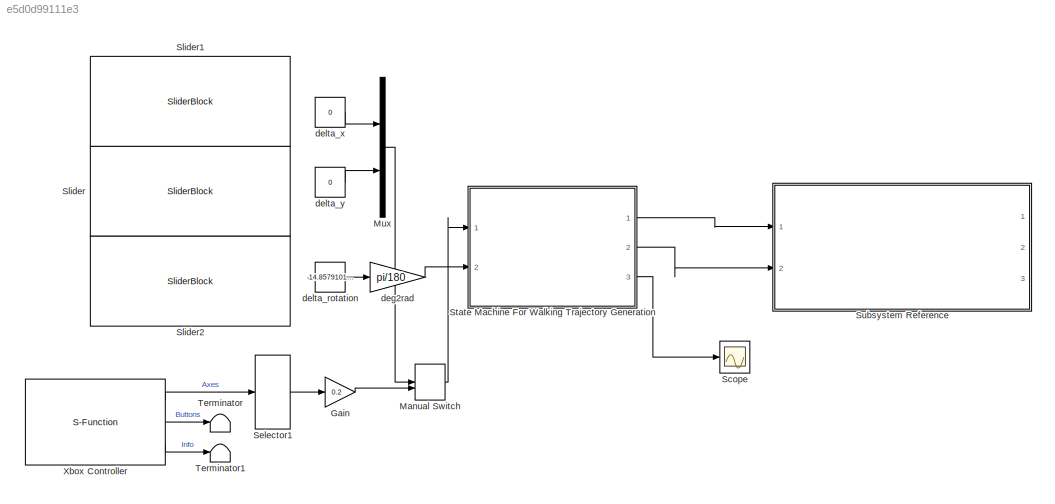
MODEL slx_e5d0d99111e3
KIND model
CONFIG AbsTol = auto
CONFIG EnableMultiTasking = off
CONFIG FixedStep = auto
CONFIG MaxStep = auto
CONFIG MinStep = auto
CONFIG RelTol = 1e-3
CONFIG SampleTimeConstraint = Unconstrained
CONFIG Solver = VariableStepAuto
CONFIG SolverName = VariableStepAuto
CONFIG StartTime = 0.0
CONFIG StopTime = inf
BLOCK [Gain] Gain
  Gain = 0.2
BLOCK [ManualSwitch] Manual Switch
BLOCK [Mux] Mux
  DisplayOption = bar
  Inputs = 2
  Ports = [2, 1]
BLOCK [Scope] Scope
  Floating = off
  NumInputPorts = 1
  Ports = [1]
  ScopeSpecificationString = Simulink.scopes.TimeScopeBlockCfg('CurrentConfiguration', extmgr.ConfigurationSet(extmgr.Configuration('Core','General UI',true),extmgr.Configuration('Core','Source UI',true),extmgr.Configuration('Sources','WiredSimulink',true,'DataLoggingVariableName','ScopeData2'),extmgr.Configuration('Visuals','Time Domain',true,'SerializedDisplays',{struct('MinYLimReal','-0.16508','MaxYLimReal','0.7739','YLabe...<+1625ch>
BLOCK [Selector] Selector1
  IndexOptions = Index vector (dialog)
  Indices = [1 2]
  InputPortWidth = 6
  OutputSizes = 1
  Ports = [1, 1]
BLOCK [SliderBlock] Slider
  ScaleMax = 0.2
  ScaleMin = -0.2
BLOCK [SliderBlock] Slider1
  ScaleMax = 0.2
  ScaleMin = -0.2
BLOCK [SliderBlock] Slider2
  ScaleMax = 45
  ScaleMin = -45
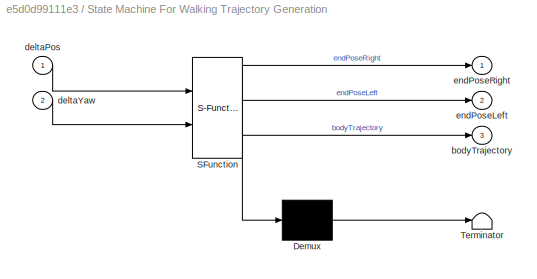
BLOCK [SubSystem] State Machine For Walking Trajectory Generation
  ErrorFcn = Stateflow.Translate.translate
  PermitHierarchicalResolution = ExplicitOnly
  Ports = [2, 3]
  RequestExecContextInheritance = off
  SFBlockType = Chart
  SystemSampleTime = Ts
  TreatAsAtomicUnit = on
BLOCK [Demux] State Machine For Walking Trajectory Generation/ Demux 
  Outputs = 1
  Ports = [1, 1]
BLOCK [S-Function] State Machine For Walking Trajectory Generation/ SFunction 
  EnableBusSupport = on
  FunctionName = sf_sfun
  PortCounts = [2 4]
  Ports = [2, 4]
  SFcnIsStateOwnerBlock = off
  SFunctionDeploymentMode = off
  Tag = Stateflow S-Function 4
BLOCK [Terminator] State Machine For Walking Trajectory Generation/ Terminator 
BLOCK [Outport] State Machine For Walking Trajectory Generation/bodyTrajectory
  Port = 3
BLOCK [Inport] State Machine For Walking Trajectory Generation/deltaPos
BLOCK [Inport] State Machine For Walking Trajectory Generation/deltaYaw
  Port = 2
BLOCK [Outport] State Machine For Walking Trajectory Generation/endPoseLeft
  Port = 2
BLOCK [Outport] State Machine For Walking Trajectory Generation/endPoseRight
BLOCK [SubSystem] Subsystem Reference
  Ports = [2, 3]
  ReferencedSubsystem = WalkingRobotSubsystem
  RequestExecContextInheritance = off
BLOCK [Terminator] Terminator
BLOCK [Terminator] Terminator1
BLOCK [S-Function] Xbox Controller
  EnableBusSupport = off
  FunctionName = XInput_Controller_SFun
  Parameters = 1
  Ports = [0, 3]
  SFcnIsStateOwnerBlock = off
  SFunctionDeploymentMode = off
BLOCK [Gain] deg2rad
  Gain = pi/180
BLOCK [Constant] delta_rotation
  StartFcn = set_param(gcbh,'Value','0')
  Value = -14.85791015625
BLOCK [Constant] delta_x
  StartFcn = set_param(gcbh,'Value','0')
  Value = 0
BLOCK [Constant] delta_y
  StartFcn = set_param(gcbh,'Value','0')
  Value = 0
LINE Gain:1 -> Manual Switch:2
LINE Manual Switch:1 -> State Machine For Walking Trajectory Generation:1
LINE Mux:1 -> Manual Switch:1
LINE Selector1:1 -> Gain:1
LINE State Machine For Walking Trajectory Generation:1 -> Subsystem Reference:1
LINE State Machine For Walking Trajectory Generation:2 -> Subsystem Reference:2
LINE State Machine For Walking Trajectory Generation:3 -> Scope:1
LINE Xbox Controller:1 -> Selector1:1
LINE Xbox Controller:2 -> Terminator:1
LINE Xbox Controller:3 -> Terminator1:1
LINE deg2rad:1 -> State Machine For Walking Trajectory Generation:2
LINE delta_rotation:1 -> deg2rad:1
LINE delta_x:1 -> Mux:1
LINE delta_y:1 -> Mux:2
CHART State Machine For
Walking Trajectory Generation states=12 transitions=6
  STATE_LABEL 'StandBy\nentry:\nidxmax = 0.5/TS;\nduring:\nidx = idx + 1;\n'
  STATE_LABEL '<!DOCTYPE HTML PUBLIC "-//W3C//DTD HTML 4.0//EN" "http://www.w3.org/TR/REC-html40/strict.dtd">\n<html><head><meta name="qrichtext" content="1" /><style type="text/css">\np, li { white-space: pre-wrap; }\n</style></head><body align="left" style=" font-family:\'Helvetica\'; font-size:12px; font-weight:400; font-style:normal;">\n<p align="left" style=" margin-top:0px; margin-bottom:0px; margin-left:0px; ma...<+2958ch>'
  STATE_LABEL '<!DOCTYPE HTML PUBLIC "-//W3C//DTD HTML 4.0//EN" "http://www.w3.org/TR/REC-html40/strict.dtd">\n<html><head><meta name="qrichtext" content="1" /><style type="text/css">\np, li { white-space: pre-wrap; }\n</style></head><body align="left" style=" font-family:\'Helvetica\'; font-size:12px; font-weight:400; font-style:normal;">\n<p align="left" style=" margin-top:0px; margin-bottom:0px; margin-left:0px; ma...<+3031ch>'
  STATE_LABEL 'getWalkingTrajectory(rightStance)'
  STATE_LABEL 'SCRIPT:\nfunction getWalkingTrajectory(rightStance)\n% Tb, Tb1: The "capture-point body pose" is an capture-point body pose I keep track of to determine\n% capture point. This is not really where the actual body of the robot will\n% be, rather this is some pose that the robot will be around at during the middle\n% of its stance trajectory. capture-point body pose is essentially something that helps\n% m...<+2652ch>'
  STATE_LABEL 'BendKnee\nentry:\nendPoseRight =           [0 -1 0 RWIDTH/2;0 0 1 0;-1 0 0 -RHEIGHT;0 0 0 1];\nendPoseRightTarget = TB_FR;\nendPoseLeft =          [0 -1 0 -RWIDTH/2;0 0 1 0;-1 0 0 -RHEIGHT;0 0 0 1];\nendPoseLeftTarget = TB_FL;\ntduration = 2.0;\nxyzqtrajr = getTrajectory(endPoseRight, endPoseRightTarget, tduration);\nxyzqtrajl = getTrajectory(endPoseLeft, endPoseLeftTarget, tduration);\nidx = 1; idxmax = r...<+232ch>'
  STATE_LABEL 'tForm = getStanceTform(whichStance)'
  STATE_LABEL 'SCRIPT:\nfunction tForm = getStanceTform(whichStance)\n% Given COM trajectory w.r.t. world and ZMP, get the Tform of foot w.r.t.\n% body at the idx \nTw_b = eye(4,4); \nTw_b(1:3,4) = measurementvec(1:3,idx); \n\nTw_f = zeros(4,4); \nTw_f(4,4) = 1; \nif whichStance == 1 % Right stance \n    Tw_f(1:3,1:3) = TB_FR(1:3,1:3); \nelse % Left stance \n    Tw_f(1:3,1:3) = TB_FL(1:3,1:3);\nend \nTw_f(1:2,4) = [cx; cy];\n\n...<+72ch>'
  STATE_LABEL 'RightStance\nentry:\ngetWalkingTrajectory(RIGHTSTANCE);\nduring:\nendPoseRight = getStanceTform(RIGHTSTANCE);\nendPoseLeft = xyzq2Tform(swingXyzq(:,idx));\nbodyTrajectory = measurementvec(1:3,idx);\nidx = idx + 1;\n'
  STATE_LABEL 'LeftStance\nentry:\ngetWalkingTrajectory(LEFTSTANCE);\nduring:\nendPoseLeft = getStanceTform(LEFTSTANCE);\nendPoseRight = xyzq2Tform(swingXyzq(:,idx));\nbodyTrajectory = measurementvec(1:3,idx);\nidx = idx + 1;\n'
  STATE_LABEL 'simulateLipm'
  STATE_LABEL 'SCRIPT:\nfunction simulateLipm\n% remember that in Stateflow, all variables are pretty much global\n% variables\n    measurementvec(3,:) = ZMODEL; \n    \n    meas1 = CD*state0 + DD*u0;\n    measurementvec(1:2,1) = meas1;\n    for temp = 2:idxmax \n        state1 = AD*state0 + BD*u0;\n        meas1  = CD*state1 + DD*u0;\n        measurementvec(1:2,temp) = meas1;\n        state0 = state1;\n    end\nend '
  STATE_LABEL 'xyzqtrajectory = getTrajectory(currMat, targetMat, taction)'
  STATE_LABEL "SCRIPT:\nfunction xyzqtrajectory = getTrajectory(currMat, targetMat, taction)\n\nquat = quaternion(currMat(1:3,1:3), 'rotmat', 'frame'); \nquat = quat.compact; \nquattarget = quaternion(targetMat(1:3,1:3), 'rotmat', 'frame');\nquattarget = quattarget.compact; \n\nx = currMat(1,4); y = currMat(2,4); z = currMat(3,4); \nxt = targetMat(1,4); yt = targetMat(2,4); zt = targetMat(3,4); \n\ncurrPts = [x y z quat]';...<+175ch>"
  STATE_LABEL 'WalkReady\nentry:\nendPoseRight = endPoseRightTarget;\nendPoseLeft = endPoseLeftTarget;\nendPoseRightTarget(1:3,4) = [0.0; 0.0; -ZMODEL];\nendPoseLeftTarget(1:3,4) = [-0.24; 0.0; -ZMODEL];\ntduration = 2.0;\nxyzqtrajr = getTrajectory(endPoseRight, endPoseRightTarget, tduration);\nxyzqtrajl = getTrajectory(endPoseLeft, endPoseLeftTarget, tduration);\nidxmax = round(tduration/TS);\nendPoseRight = vec2Tform(xy...<+184ch>'
  STATE_LABEL 'xyzqtrajectory = generateSwingTraj(currMat, targetMat)'
  STATE_LABEL "SCRIPT:\nfunction xyzqtrajectory = generateSwingTraj(currMat, targetMat)\n\nquat = quaternion(currMat(1:3,1:3), 'rotmat', 'frame'); \nquat = quat.compact; \nquattarget = quaternion(targetMat(1:3,1:3), 'rotmat', 'frame');\nquattarget = quattarget.compact; \n\nx0 = currMat(1,4);     y0 = currMat(2,4);     z0 = currMat(3,4); \nx2 = targetMat(1,4);   y2 = targetMat(2,4);   z2 = targetMat(3,4); \nx1 = (x0 + x2)/...<+294ch>"
CHART  states=0 transitions=0
